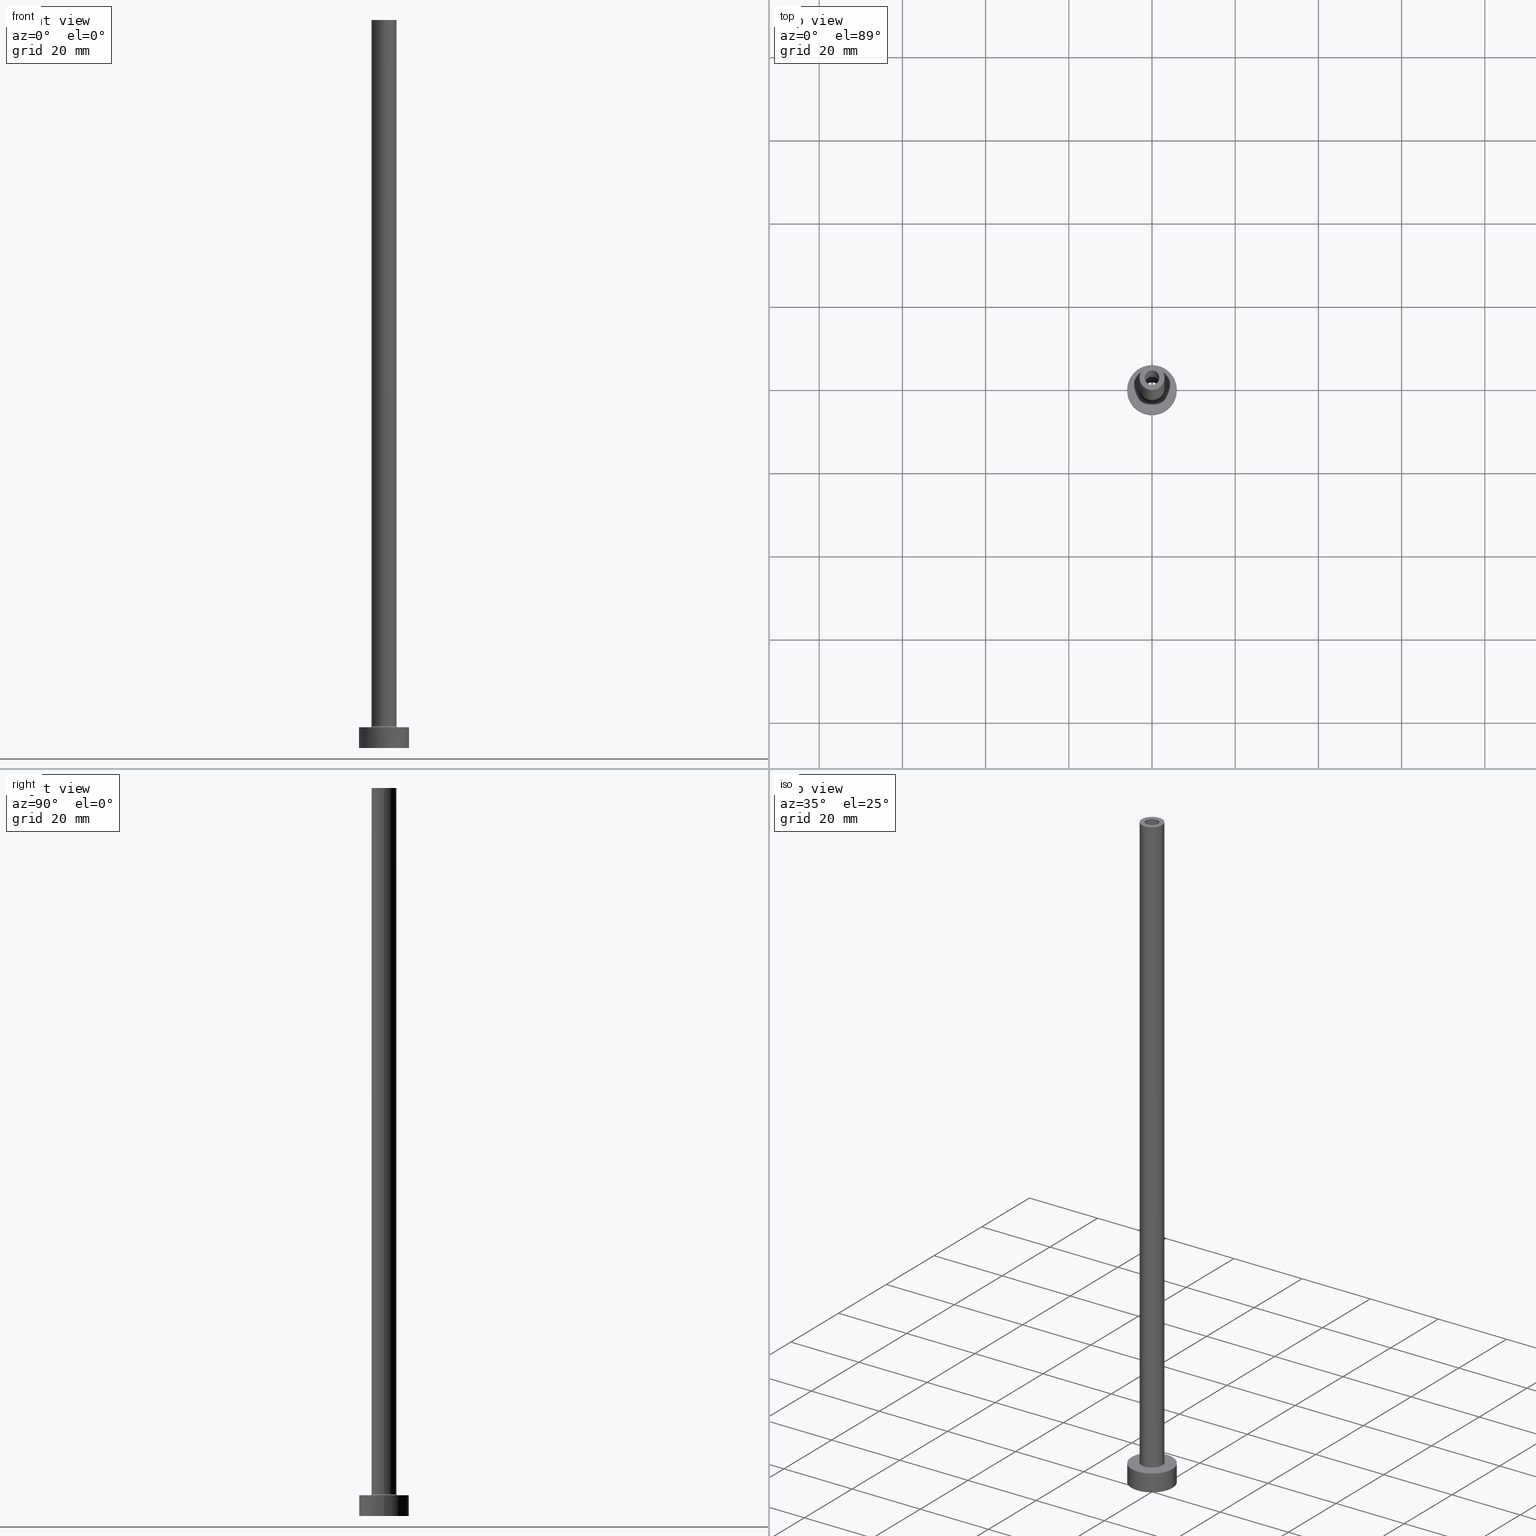
[diagram: canonical four-view strip — front | top / right | iso, engineering-drawing reading convention]
A machine part, canonical four-view strip (front | top / right | iso — engineering-drawing reading convention). The complete STEP part file that produces these views, byte-faithful:
ISO-10303-21;
HEADER;
FILE_DESCRIPTION (( 'STEP AP203' ),
    '1' );
FILE_NAME ('4380.STEP',
    '2023-02-13T12:00:36',
    ( '' ),
    ( '' ),
    'SwSTEP 2.0',
    'SolidWorks 2019',
    '' );
FILE_SCHEMA (( 'CONFIG_CONTROL_DESIGN' ));
ENDSEC;

DATA;
#1 = PERSON_AND_ORGANIZATION ( #414, #332 ) ;
#2 = CARTESIAN_POINT ( 'NONE',  ( 0.000000000000000000, 0.000000000000000000, 130.0000000000000000 ) ) ;
#3 = ORIENTED_EDGE ( 'NONE', *, *, #30, .F. ) ;
#4 = SECURITY_CLASSIFICATION_LEVEL ( 'unclassified' ) ;
#5 = DIRECTION ( 'NONE',  ( 1.000000000000000000, 0.000000000000000000, 0.000000000000000000 ) ) ;
#6 = EDGE_LOOP ( 'NONE', ( #363, #161, #320, #313 ) ) ;
#7 = CARTESIAN_POINT ( 'NONE',  ( 1.750000000000000000, 2.143131898507868297E-16, 175.0000000000000284 ) ) ;
#8 = ORIENTED_EDGE ( 'NONE', *, *, #376, .T. ) ;
#9 = CARTESIAN_POINT ( 'NONE',  ( 0.000000000000000000, 0.000000000000000000, 0.000000000000000000 ) ) ;
#10 = DIRECTION ( 'NONE',  ( -0.000000000000000000, -0.000000000000000000, -1.000000000000000000 ) ) ;
#11 = ORIENTED_EDGE ( 'NONE', *, *, #263, .F. ) ;
#12 = TOROIDAL_SURFACE ( 'NONE', #22, 3.300000000000000266, 0.2999999999999999889 ) ;
#13 = CARTESIAN_POINT ( 'NONE',  ( -3.300000000000000266, 4.041334437186266003E-16, 4.999999999999999112 ) ) ;
#14 = CARTESIAN_POINT ( 'NONE',  ( 0.000000000000000000, 0.000000000000000000, 5.299999999999998934 ) ) ;
#15 = VECTOR ( 'NONE', #364, 1000.000000000000000 ) ;
#16 = EDGE_LOOP ( 'NONE', ( #342, #378, #158, #439 ) ) ;
#17 = FACE_OUTER_BOUND ( 'NONE', #6, .T. ) ;
#18 = AXIS2_PLACEMENT_3D ( 'NONE', #227, #196, #173 ) ;
#19 = EDGE_LOOP ( 'NONE', ( #360, #426 ) ) ;
#20 = DIRECTION ( 'NONE',  ( 0.000000000000000000, 0.000000000000000000, 1.000000000000000000 ) ) ;
#21 = CARTESIAN_POINT ( 'NONE',  ( -1.899999999999999911, 0.000000000000000000, 0.000000000000000000 ) ) ;
#22 = AXIS2_PLACEMENT_3D ( 'NONE', #418, #86, #122 ) ;
#23 = PLANE ( 'NONE',  #91 ) ;
#24 = FACE_OUTER_BOUND ( 'NONE', #150, .T. ) ;
#25 = CARTESIAN_POINT ( 'NONE',  ( 6.000000000000000888, 7.347880794884120722E-16, 5.000000000000000000 ) ) ;
#26 = CYLINDRICAL_SURFACE ( 'NONE', #321, 6.000000000000000888 ) ;
#27 = CYLINDRICAL_SURFACE ( 'NONE', #448, 1.750000000000000000 ) ;
#28 = LINE ( 'NONE', #308, #324 ) ;
#29 = CIRCLE ( 'NONE', #286, 6.000000000000000888 ) ;
#30 = EDGE_CURVE ( 'NONE', #194, #176, #225, .T. ) ;
#31 = AXIS2_PLACEMENT_3D ( 'NONE', #175, #235, #416 ) ;
#32 = EDGE_CURVE ( 'NONE', #232, #67, #243, .T. ) ;
#33 = FACE_OUTER_BOUND ( 'NONE', #374, .T. ) ;
#34 = ORIENTED_EDGE ( 'NONE', *, *, #263, .T. ) ;
#35 = PERSON_AND_ORGANIZATION_ROLE ( 'creator' ) ;
#36 = CARTESIAN_POINT ( 'NONE',  ( 0.000000000000000000, 0.000000000000000000, 175.0000000000000284 ) ) ;
#37 = VERTEX_POINT ( 'NONE', #57 ) ;
#38 = ORIENTED_EDGE ( 'NONE', *, *, #456, .F. ) ;
#39 = CIRCLE ( 'NONE', #249, 6.000000000000000888 ) ;
#40 = PRODUCT_DEFINITION ( 'NEZN�M�', '', #299, #151 ) ;
#41 = CIRCLE ( 'NONE', #199, 6.000000000000000888 ) ;
#42 = CIRCLE ( 'NONE', #229, 1.750000000000000000 ) ;
#43 = DIRECTION ( 'NONE',  ( 1.000000000000000000, 0.000000000000000000, 0.000000000000000000 ) ) ;
#44 = PRODUCT ( '4380', '4380', '', ( #461 ) ) ;
#45 = AXIS2_PLACEMENT_3D ( 'NONE', #449, #64, #95 ) ;
#46 = PERSON_AND_ORGANIZATION_ROLE ( 'creator' ) ;
#47 = EDGE_CURVE ( 'NONE', #178, #256, #50, .T. ) ;
#48 = LOCAL_TIME ( 13, 0, 36.00000000000000000, #211 ) ;
#49 = CIRCLE ( 'NONE', #326, 3.000000000000000444 ) ;
#50 = CIRCLE ( 'NONE', #45, 0.2999999999999999334 ) ;
#51 = DIRECTION ( 'NONE',  ( 1.000000000000000000, 0.000000000000000000, 0.000000000000000000 ) ) ;
#52 = EDGE_CURVE ( 'NONE', #369, #232, #134, .T. ) ;
#53 = EDGE_CURVE ( 'NONE', #403, #283, #56, .T. ) ;
#54 = CIRCLE ( 'NONE', #307, 3.300000000000000266 ) ;
#55 = ORIENTED_EDGE ( 'NONE', *, *, #365, .T. ) ;
#56 = CIRCLE ( 'NONE', #18, 1.899999999999999911 ) ;
#57 = CARTESIAN_POINT ( 'NONE',  ( -1.750000000000000000, 0.000000000000000000, 175.0000000000000284 ) ) ;
#58 = EDGE_CURVE ( 'NONE', #256, #186, #156, .T. ) ;
#59 = EDGE_LOOP ( 'NONE', ( #293, #84, #8, #169 ) ) ;
#60 = LINE ( 'NONE', #226, #268 ) ;
#61 = DIRECTION ( 'NONE',  ( 1.000000000000000000, 0.000000000000000000, 0.000000000000000000 ) ) ;
#62 = AXIS2_PLACEMENT_3D ( 'NONE', #372, #339, #269 ) ;
#63 = PLANE ( 'NONE',  #367 ) ;
#64 = DIRECTION ( 'NONE',  ( 1.224646799147353207E-16, 1.000000000000000000, -0.000000000000000000 ) ) ;
#65 = ORIENTED_EDGE ( 'NONE', *, *, #264, .F. ) ;
#66 = ADVANCED_FACE ( 'NONE', ( #204, #337 ), #23, .F. ) ;
#67 = VERTEX_POINT ( 'NONE', #344 ) ;
#68 = CIRCLE ( 'NONE', #92, 1.750000000000000000 ) ;
#69 = PERSON_AND_ORGANIZATION ( #414, #332 ) ;
#70 = FACE_BOUND ( 'NONE', #357, .T. ) ;
#71 = DIRECTION ( 'NONE',  ( 0.000000000000000000, 0.000000000000000000, 1.000000000000000000 ) ) ;
#72 = VERTEX_POINT ( 'NONE', #101 ) ;
#73 = COORDINATED_UNIVERSAL_TIME_OFFSET ( 1, 0, .AHEAD. ) ;
#74 = EDGE_LOOP ( 'NONE', ( #424, #297, #434, #447 ) ) ;
#75 = PERSON_AND_ORGANIZATION_ROLE ( 'classification_officer' ) ;
#76 =( NAMED_UNIT ( * ) SI_UNIT ( $, .STERADIAN. ) SOLID_ANGLE_UNIT ( ) );
#77 = ORIENTED_EDGE ( 'NONE', *, *, #237, .F. ) ;
#78 =( GEOMETRIC_REPRESENTATION_CONTEXT ( 3 ) GLOBAL_UNCERTAINTY_ASSIGNED_CONTEXT ( ( #352 ) ) GLOBAL_UNIT_ASSIGNED_CONTEXT ( ( #79, #282, #76 ) ) REPRESENTATION_CONTEXT ( 'NONE', 'WORKASPACE' ) );
#79 =( LENGTH_UNIT ( ) NAMED_UNIT ( * ) SI_UNIT ( .MILLI., .METRE. ) );
#80 = VECTOR ( 'NONE', #198, 1000.000000000000000 ) ;
#81 = CARTESIAN_POINT ( 'NONE',  ( 0.000000000000000000, 0.000000000000000000, 5.299999999999998934 ) ) ;
#82 = PERSON_AND_ORGANIZATION ( #414, #332 ) ;
#83 = CARTESIAN_POINT ( 'NONE',  ( 0.000000000000000000, 0.000000000000000000, 175.0000000000000284 ) ) ;
#84 = ORIENTED_EDGE ( 'NONE', *, *, #164, .F. ) ;
#85 = EDGE_LOOP ( 'NONE', ( #77, #281 ) ) ;
#86 = DIRECTION ( 'NONE',  ( 0.000000000000000000, 0.000000000000000000, 1.000000000000000000 ) ) ;
#87 = AXIS2_PLACEMENT_3D ( 'NONE', #163, #407, #191 ) ;
#88 = CARTESIAN_POINT ( 'NONE',  ( 0.000000000000000000, 0.000000000000000000, 5.000000000000000000 ) ) ;
#89 = DIRECTION ( 'NONE',  ( 0.000000000000000000, 0.000000000000000000, 1.000000000000000000 ) ) ;
#90 = CC_DESIGN_APPROVAL ( #94, ( #40 ) ) ;
#91 = AXIS2_PLACEMENT_3D ( 'NONE', #168, #417, #96 ) ;
#92 = AXIS2_PLACEMENT_3D ( 'NONE', #83, #193, #295 ) ;
#93 = ORIENTED_EDGE ( 'NONE', *, *, #32, .T. ) ;
#94 = APPROVAL ( #396, 'NEUR�EN�' ) ;
#95 = DIRECTION ( 'NONE',  ( -1.000000000000000000, 1.224646799147353207E-16, 0.000000000000000000 ) ) ;
#96 = DIRECTION ( 'NONE',  ( 1.000000000000000000, 0.000000000000000000, -0.000000000000000000 ) ) ;
#97 = EDGE_LOOP ( 'NONE', ( #190, #380, #93, #110 ) ) ;
#98 = DIRECTION ( 'NONE',  ( -1.000000000000000000, 0.000000000000000000, 0.000000000000000000 ) ) ;
#99 = CIRCLE ( 'NONE', #384, 0.2999999999999999334 ) ;
#100 = CARTESIAN_POINT ( 'NONE',  ( 1.899999999999999911, 2.326828918379971365E-16, 130.0000000000000000 ) ) ;
#101 = CARTESIAN_POINT ( 'NONE',  ( 3.000000000000000444, 3.673940397442060361E-16, 175.0000000000000284 ) ) ;
#102 = CARTESIAN_POINT ( 'NONE',  ( 3.300000000000000266, 0.000000000000000000, 4.999999999999999112 ) ) ;
#103 = APPROVAL_STATUS ( 'not_yet_approved' ) ;
#104 = CARTESIAN_POINT ( 'NONE',  ( 3.000000000000000444, 3.673940397442060361E-16, 175.0000000000000284 ) ) ;
#105 = APPROVAL_PERSON_ORGANIZATION ( #419, #241, #314 ) ;
#106 = ORIENTED_EDGE ( 'NONE', *, *, #280, .F. ) ;
#107 = DATE_TIME_ROLE ( 'classification_date' ) ;
#108 = DIRECTION ( 'NONE',  ( 1.000000000000000000, 0.000000000000000000, -0.000000000000000000 ) ) ;
#109 = DIRECTION ( 'NONE',  ( 0.000000000000000000, 0.000000000000000000, 1.000000000000000000 ) ) ;
#110 = ORIENTED_EDGE ( 'NONE', *, *, #216, .F. ) ;
#111 = PERSON_AND_ORGANIZATION ( #414, #332 ) ;
#112 = ORIENTED_EDGE ( 'NONE', *, *, #359, .T. ) ;
#113 = PERSON_AND_ORGANIZATION_ROLE ( 'design_supplier' ) ;
#114 = APPROVAL_ROLE ( '' ) ;
#115 = ORIENTED_EDGE ( 'NONE', *, *, #221, .T. ) ;
#116 = CIRCLE ( 'NONE', #438, 3.000000000000000444 ) ;
#117 = CARTESIAN_POINT ( 'NONE',  ( -6.000000000000000888, 0.000000000000000000, 5.000000000000000000 ) ) ;
#118 = DIRECTION ( 'NONE',  ( 0.000000000000000000, 0.000000000000000000, 1.000000000000000000 ) ) ;
#119 = VERTEX_POINT ( 'NONE', #234 ) ;
#120 = EDGE_CURVE ( 'NONE', #389, #209, #345, .T. ) ;
#121 = DIRECTION ( 'NONE',  ( 0.000000000000000000, 0.000000000000000000, 1.000000000000000000 ) ) ;
#122 = DIRECTION ( 'NONE',  ( 1.000000000000000000, 0.000000000000000000, 0.000000000000000000 ) ) ;
#123 = DIRECTION ( 'NONE',  ( 0.000000000000000000, 0.000000000000000000, 1.000000000000000000 ) ) ;
#124 = ADVANCED_FACE ( 'NONE', ( #302 ), #404, .T. ) ;
#125 = EDGE_LOOP ( 'NONE', ( #3, #290, #230, #432 ) ) ;
#126 = DIRECTION ( 'NONE',  ( -1.000000000000000000, 0.000000000000000000, 0.000000000000000000 ) ) ;
#127 = CARTESIAN_POINT ( 'NONE',  ( -6.000000000000000888, 0.000000000000000000, 5.000000000000000000 ) ) ;
#128 = CIRCLE ( 'NONE', #446, 3.000000000000000444 ) ;
#129 = DIRECTION ( 'NONE',  ( 0.000000000000000000, 0.000000000000000000, -1.000000000000000000 ) ) ;
#130 = AXIS2_PLACEMENT_3D ( 'NONE', #242, #89, #411 ) ;
#131 = CARTESIAN_POINT ( 'NONE',  ( 1.750000000000000000, 2.143131898507868297E-16, 175.0000000000000284 ) ) ;
#132 = PRODUCT_RELATED_PRODUCT_CATEGORY ( 'detail', '', ( #44 ) ) ;
#133 = FACE_OUTER_BOUND ( 'NONE', #59, .T. ) ;
#134 = LINE ( 'NONE', #25, #162 ) ;
#135 = DIRECTION ( 'NONE',  ( 1.000000000000000000, 0.000000000000000000, 0.000000000000000000 ) ) ;
#136 = ADVANCED_FACE ( 'NONE', ( #341 ), #26, .T. ) ;
#137 = CARTESIAN_POINT ( 'NONE',  ( 0.000000000000000000, 0.000000000000000000, 5.000000000000000000 ) ) ;
#138 = APPROVAL_PERSON_ORGANIZATION ( #428, #94, #114 ) ;
#139 = DIRECTION ( 'NONE',  ( -0.000000000000000000, -0.000000000000000000, -1.000000000000000000 ) ) ;
#140 = CIRCLE ( 'NONE', #260, 1.899999999999999911 ) ;
#141 = CARTESIAN_POINT ( 'NONE',  ( 0.000000000000000000, 0.000000000000000000, 130.0000000000000000 ) ) ;
#142 = DATE_TIME_ROLE ( 'creation_date' ) ;
#143 = LINE ( 'NONE', #104, #338 ) ;
#144 = DIRECTION ( 'NONE',  ( 0.000000000000000000, 0.000000000000000000, 1.000000000000000000 ) ) ;
#145 = CALENDAR_DATE ( 2023, 13, 2 ) ;
#146 = LOCAL_TIME ( 13, 0, 36.00000000000000000, #73 ) ;
#147 = CALENDAR_DATE ( 2023, 13, 2 ) ;
#148 = APPROVAL_ROLE ( '' ) ;
#149 = LINE ( 'NONE', #251, #353 ) ;
#150 = EDGE_LOOP ( 'NONE', ( #402, #65, #115, #347 ) ) ;
#151 = DESIGN_CONTEXT ( 'detailed design', #231, 'design' ) ;
#152 = EDGE_CURVE ( 'NONE', #37, #410, #28, .T. ) ;
#153 = AXIS2_PLACEMENT_3D ( 'NONE', #137, #305, #453 ) ;
#154 = APPLICATION_PROTOCOL_DEFINITION ( 'international standard', 'config_control_design', 1994, #231 ) ;
#155 = EDGE_LOOP ( 'NONE', ( #106, #185, #11, #333 ) ) ;
#156 = CIRCLE ( 'NONE', #271, 3.300000000000000266 ) ;
#157 = CARTESIAN_POINT ( 'NONE',  ( 6.000000000000000888, 7.347880794884120722E-16, 5.000000000000000000 ) ) ;
#158 = ORIENTED_EDGE ( 'NONE', *, *, #164, .T. ) ;
#159 = ADVANCED_FACE ( 'NONE', ( #177 ), #12, .F. ) ;
#160 = VERTEX_POINT ( 'NONE', #117 ) ;
#161 = ORIENTED_EDGE ( 'NONE', *, *, #456, .T. ) ;
#162 = VECTOR ( 'NONE', #265, 1000.000000000000000 ) ;
#163 = CARTESIAN_POINT ( 'NONE',  ( 0.000000000000000000, 0.000000000000000000, 135.3740115370177932 ) ) ;
#164 = EDGE_CURVE ( 'NONE', #119, #178, #215, .T. ) ;
#165 = ORIENTED_EDGE ( 'NONE', *, *, #188, .T. ) ;
#166 = FACE_OUTER_BOUND ( 'NONE', #97, .T. ) ;
#167 = CIRCLE ( 'NONE', #322, 1.750000000000000000 ) ;
#168 = CARTESIAN_POINT ( 'NONE',  ( 0.000000000000000000, 0.000000000000000000, 0.000000000000000000 ) ) ;
#169 = ORIENTED_EDGE ( 'NONE', *, *, #58, .F. ) ;
#170 = CC_DESIGN_PERSON_AND_ORGANIZATION_ASSIGNMENT ( #82, #316, ( #44 ) ) ;
#171 = CARTESIAN_POINT ( 'NONE',  ( 0.000000000000000000, 0.000000000000000000, 0.000000000000000000 ) ) ;
#172 = CARTESIAN_POINT ( 'NONE',  ( 0.000000000000000000, 0.000000000000000000, 5.000000000000000000 ) ) ;
#173 = DIRECTION ( 'NONE',  ( 1.000000000000000000, 0.000000000000000000, 0.000000000000000000 ) ) ;
#174 = FACE_OUTER_BOUND ( 'NONE', #317, .T. ) ;
#175 = CARTESIAN_POINT ( 'NONE',  ( 0.000000000000000000, 0.000000000000000000, 175.0000000000000284 ) ) ;
#176 = VERTEX_POINT ( 'NONE', #309 ) ;
#177 = FACE_OUTER_BOUND ( 'NONE', #155, .T. ) ;
#178 = VERTEX_POINT ( 'NONE', #421 ) ;
#179 = DIRECTION ( 'NONE',  ( 1.000000000000000000, 0.000000000000000000, 0.000000000000000000 ) ) ;
#180 = ORIENTED_EDGE ( 'NONE', *, *, #30, .T. ) ;
#181 = DATE_AND_TIME ( #145, #146 ) ;
#182 = FACE_OUTER_BOUND ( 'NONE', #220, .T. ) ;
#183 = AXIS2_PLACEMENT_3D ( 'NONE', #262, #409, #135 ) ;
#184 = ORIENTED_EDGE ( 'NONE', *, *, #451, .F. ) ;
#185 = ORIENTED_EDGE ( 'NONE', *, *, #47, .T. ) ;
#186 = VERTEX_POINT ( 'NONE', #102 ) ;
#187 = AXIS2_PLACEMENT_3D ( 'NONE', #412, #139, #98 ) ;
#188 = EDGE_CURVE ( 'NONE', #283, #209, #397, .T. ) ;
#189 = CARTESIAN_POINT ( 'NONE',  ( 0.000000000000000000, 0.000000000000000000, 5.000000000000000000 ) ) ;
#190 = ORIENTED_EDGE ( 'NONE', *, *, #365, .F. ) ;
#191 = DIRECTION ( 'NONE',  ( -1.000000000000000000, 0.000000000000000000, 0.000000000000000000 ) ) ;
#192 = CYLINDRICAL_SURFACE ( 'NONE', #346, 1.899999999999999911 ) ;
#193 = DIRECTION ( 'NONE',  ( 0.000000000000000000, 0.000000000000000000, 1.000000000000000000 ) ) ;
#194 = VERTEX_POINT ( 'NONE', #7 ) ;
#195 = ADVANCED_FACE ( 'NONE', ( #33 ), #258, .F. ) ;
#196 = DIRECTION ( 'NONE',  ( 0.000000000000000000, 0.000000000000000000, 1.000000000000000000 ) ) ;
#197 = CARTESIAN_POINT ( 'NONE',  ( 0.000000000000000000, 0.000000000000000000, 135.3740115370177932 ) ) ;
#198 = DIRECTION ( 'NONE',  ( 0.000000000000000000, 0.000000000000000000, -1.000000000000000000 ) ) ;
#199 = AXIS2_PLACEMENT_3D ( 'NONE', #172, #144, #274 ) ;
#200 = TOROIDAL_SURFACE ( 'NONE', #62, 3.300000000000000266, 0.2999999999999999889 ) ;
#201 = CC_DESIGN_PERSON_AND_ORGANIZATION_ASSIGNMENT ( #358, #46, ( #40 ) ) ;
#202 = CARTESIAN_POINT ( 'NONE',  ( 3.300000000000000266, 0.000000000000000000, 5.299999999999998934 ) ) ;
#203 = DIRECTION ( 'NONE',  ( 0.000000000000000000, 0.000000000000000000, -1.000000000000000000 ) ) ;
#204 = FACE_BOUND ( 'NONE', #85, .T. ) ;
#205 = FACE_BOUND ( 'NONE', #325, .T. ) ;
#206 = DIRECTION ( 'NONE',  ( -1.000000000000000000, 0.000000000000000000, 0.000000000000000000 ) ) ;
#207 = DIRECTION ( 'NONE',  ( -1.000000000000000000, 0.000000000000000000, 0.000000000000000000 ) ) ;
#208 = CIRCLE ( 'NONE', #130, 1.750000000000000000 ) ;
#209 = VERTEX_POINT ( 'NONE', #21 ) ;
#210 = FACE_OUTER_BOUND ( 'NONE', #270, .T. ) ;
#211 = COORDINATED_UNIVERSAL_TIME_OFFSET ( 1, 0, .AHEAD. ) ;
#212 = APPROVAL ( #103, 'NEUR�EN�' ) ;
#213 = EDGE_LOOP ( 'NONE', ( #285, #228 ) ) ;
#214 = CARTESIAN_POINT ( 'NONE',  ( -3.000000000000000444, 0.000000000000000000, 175.0000000000000284 ) ) ;
#215 = CIRCLE ( 'NONE', #222, 3.000000000000000444 ) ;
#216 = EDGE_CURVE ( 'NONE', #160, #67, #296, .T. ) ;
#217 = DIRECTION ( 'NONE',  ( 1.000000000000000000, 0.000000000000000000, 0.000000000000000000 ) ) ;
#218 = DATE_AND_TIME ( #288, #223 ) ;
#219 = DIRECTION ( 'NONE',  ( 0.000000000000000000, 0.000000000000000000, -1.000000000000000000 ) ) ;
#220 = EDGE_LOOP ( 'NONE', ( #112, #180, #184, #278 ) ) ;
#221 = EDGE_CURVE ( 'NONE', #444, #178, #60, .T. ) ;
#222 = AXIS2_PLACEMENT_3D ( 'NONE', #81, #457, #5 ) ;
#223 = LOCAL_TIME ( 13, 0, 36.00000000000000000, #248 ) ;
#224 = CIRCLE ( 'NONE', #400, 1.899999999999999911 ) ;
#225 = LINE ( 'NONE', #131, #80 ) ;
#226 = CARTESIAN_POINT ( 'NONE',  ( -3.000000000000000444, 0.000000000000000000, 175.0000000000000284 ) ) ;
#227 = CARTESIAN_POINT ( 'NONE',  ( 0.000000000000000000, 0.000000000000000000, 130.0000000000000000 ) ) ;
#228 = ORIENTED_EDGE ( 'NONE', *, *, #257, .F. ) ;
#229 = AXIS2_PLACEMENT_3D ( 'NONE', #395, #425, #43 ) ;
#230 = ORIENTED_EDGE ( 'NONE', *, *, #152, .T. ) ;
#231 = APPLICATION_CONTEXT ( 'configuration controlled 3d designs of mechanical parts and assemblies' ) ;
#232 = VERTEX_POINT ( 'NONE', #328 ) ;
#233 = CARTESIAN_POINT ( 'NONE',  ( 0.000000000000000000, 0.000000000000000000, 175.0000000000000284 ) ) ;
#234 = CARTESIAN_POINT ( 'NONE',  ( 3.000000000000000444, 3.673940397442060361E-16, 5.299999999999998934 ) ) ;
#235 = DIRECTION ( 'NONE',  ( -0.000000000000000000, -0.000000000000000000, -1.000000000000000000 ) ) ;
#236 = DIRECTION ( 'NONE',  ( 0.000000000000000000, 0.000000000000000000, -1.000000000000000000 ) ) ;
#237 = EDGE_CURVE ( 'NONE', #209, #389, #140, .T. ) ;
#238 = APPROVAL_DATE_TIME ( #181, #212 ) ;
#239 = DIRECTION ( 'NONE',  ( 0.000000000000000000, 0.000000000000000000, 1.000000000000000000 ) ) ;
#240 = LOCAL_TIME ( 13, 0, 36.00000000000000000, #246 ) ;
#241 = APPROVAL ( #348, 'NEUR�EN�' ) ;
#242 = CARTESIAN_POINT ( 'NONE',  ( 0.000000000000000000, 0.000000000000000000, 130.0000000000000000 ) ) ;
#243 = CIRCLE ( 'NONE', #183, 6.000000000000000888 ) ;
#244 = DIRECTION ( 'NONE',  ( 0.000000000000000000, 0.000000000000000000, -1.000000000000000000 ) ) ;
#245 = SHAPE_DEFINITION_REPRESENTATION ( #356, #368 ) ;
#246 = COORDINATED_UNIVERSAL_TIME_OFFSET ( 1, 0, .AHEAD. ) ;
#247 = DIRECTION ( 'NONE',  ( 1.000000000000000000, 0.000000000000000000, -0.000000000000000000 ) ) ;
#248 = COORDINATED_UNIVERSAL_TIME_OFFSET ( 1, 0, .AHEAD. ) ;
#249 = AXIS2_PLACEMENT_3D ( 'NONE', #391, #109, #279 ) ;
#250 = CARTESIAN_POINT ( 'NONE',  ( 0.000000000000000000, 0.000000000000000000, 0.000000000000000000 ) ) ;
#251 = CARTESIAN_POINT ( 'NONE',  ( 1.899999999999999911, 2.326828918379971365E-16, 135.3740115370177932 ) ) ;
#252 = ORIENTED_EDGE ( 'NONE', *, *, #429, .F. ) ;
#253 = CC_DESIGN_SECURITY_CLASSIFICATION ( #298, ( #299 ) ) ;
#254 = DIRECTION ( 'NONE',  ( 1.000000000000000000, 0.000000000000000000, 0.000000000000000000 ) ) ;
#255 = DIRECTION ( 'NONE',  ( 1.000000000000000000, 0.000000000000000000, 0.000000000000000000 ) ) ;
#256 = VERTEX_POINT ( 'NONE', #13 ) ;
#257 = EDGE_CURVE ( 'NONE', #194, #37, #68, .T. ) ;
#258 = CYLINDRICAL_SURFACE ( 'NONE', #87, 1.899999999999999911 ) ;
#259 = AXIS2_PLACEMENT_3D ( 'NONE', #250, #118, #179 ) ;
#260 = AXIS2_PLACEMENT_3D ( 'NONE', #9, #435, #254 ) ;
#261 = DIRECTION ( 'NONE',  ( 1.000000000000000000, 0.000000000000000000, 0.000000000000000000 ) ) ;
#262 = CARTESIAN_POINT ( 'NONE',  ( 0.000000000000000000, 0.000000000000000000, 0.000000000000000000 ) ) ;
#263 = EDGE_CURVE ( 'NONE', #186, #256, #54, .T. ) ;
#264 = EDGE_CURVE ( 'NONE', #444, #72, #116, .T. ) ;
#265 = DIRECTION ( 'NONE',  ( -0.000000000000000000, -0.000000000000000000, -1.000000000000000000 ) ) ;
#266 = DIRECTION ( 'NONE',  ( 1.000000000000000000, 0.000000000000000000, 0.000000000000000000 ) ) ;
#267 = DIRECTION ( 'NONE',  ( -0.000000000000000000, -0.000000000000000000, -1.000000000000000000 ) ) ;
#268 = VECTOR ( 'NONE', #292, 1000.000000000000000 ) ;
#269 = DIRECTION ( 'NONE',  ( 1.000000000000000000, 0.000000000000000000, 0.000000000000000000 ) ) ;
#270 = EDGE_LOOP ( 'NONE', ( #387, #351 ) ) ;
#271 = AXIS2_PLACEMENT_3D ( 'NONE', #377, #334, #266 ) ;
#272 = CARTESIAN_POINT ( 'NONE',  ( 1.899999999999999911, 2.326828918379971365E-16, 0.000000000000000000 ) ) ;
#273 = ADVANCED_FACE ( 'NONE', ( #17 ), #192, .F. ) ;
#274 = DIRECTION ( 'NONE',  ( 1.000000000000000000, 0.000000000000000000, 0.000000000000000000 ) ) ;
#275 = ORIENTED_EDGE ( 'NONE', *, *, #32, .F. ) ;
#276 = DATE_AND_TIME ( #147, #240 ) ;
#277 = AXIS2_PLACEMENT_3D ( 'NONE', #88, #441, #126 ) ;
#278 = ORIENTED_EDGE ( 'NONE', *, *, #152, .F. ) ;
#279 = DIRECTION ( 'NONE',  ( 1.000000000000000000, 0.000000000000000000, 0.000000000000000000 ) ) ;
#280 = EDGE_CURVE ( 'NONE', #178, #119, #49, .T. ) ;
#281 = ORIENTED_EDGE ( 'NONE', *, *, #120, .F. ) ;
#282 =( NAMED_UNIT ( * ) PLANE_ANGLE_UNIT ( ) SI_UNIT ( $, .RADIAN. ) );
#283 = VERTEX_POINT ( 'NONE', #331 ) ;
#284 = PERSON_AND_ORGANIZATION ( #414, #332 ) ;
#285 = ORIENTED_EDGE ( 'NONE', *, *, #359, .F. ) ;
#286 = AXIS2_PLACEMENT_3D ( 'NONE', #361, #390, #217 ) ;
#287 = PLANE ( 'NONE',  #294 ) ;
#288 = CALENDAR_DATE ( 2023, 13, 2 ) ;
#289 = ADVANCED_FACE ( 'NONE', ( #166 ), #401, .T. ) ;
#290 = ORIENTED_EDGE ( 'NONE', *, *, #257, .T. ) ;
#291 = ORIENTED_EDGE ( 'NONE', *, *, #237, .T. ) ;
#292 = DIRECTION ( 'NONE',  ( -0.000000000000000000, -0.000000000000000000, -1.000000000000000000 ) ) ;
#293 = ORIENTED_EDGE ( 'NONE', *, *, #47, .F. ) ;
#294 = AXIS2_PLACEMENT_3D ( 'NONE', #315, #121, #247 ) ;
#295 = DIRECTION ( 'NONE',  ( 1.000000000000000000, 0.000000000000000000, 0.000000000000000000 ) ) ;
#296 = LINE ( 'NONE', #127, #440 ) ;
#297 = ORIENTED_EDGE ( 'NONE', *, *, #406, .F. ) ;
#298 = SECURITY_CLASSIFICATION ( '', '', #4 ) ;
#299 = PRODUCT_DEFINITION_FORMATION_WITH_SPECIFIED_SOURCE ( 'LIBOVOLN�', '', #44, .NOT_KNOWN. ) ;
#300 = CARTESIAN_POINT ( 'NONE',  ( 0.000000000000000000, 0.000000000000000000, 175.0000000000000284 ) ) ;
#301 = CC_DESIGN_PERSON_AND_ORGANIZATION_ASSIGNMENT ( #111, #75, ( #298 ) ) ;
#302 = FACE_OUTER_BOUND ( 'NONE', #16, .T. ) ;
#303 = CARTESIAN_POINT ( 'NONE',  ( 0.000000000000000000, 0.000000000000000000, 5.000000000000000000 ) ) ;
#304 = ADVANCED_FACE ( 'NONE', ( #205, #174 ), #454, .T. ) ;
#305 = DIRECTION ( 'NONE',  ( 0.000000000000000000, 0.000000000000000000, 1.000000000000000000 ) ) ;
#306 = EDGE_CURVE ( 'NONE', #72, #119, #143, .T. ) ;
#307 = AXIS2_PLACEMENT_3D ( 'NONE', #189, #10, #51 ) ;
#308 = CARTESIAN_POINT ( 'NONE',  ( -1.750000000000000000, 0.000000000000000000, 175.0000000000000284 ) ) ;
#309 = CARTESIAN_POINT ( 'NONE',  ( 1.750000000000000000, 2.143131898507868297E-16, 130.0000000000000000 ) ) ;
#310 = ORIENTED_EDGE ( 'NONE', *, *, #370, .T. ) ;
#311 = FACE_BOUND ( 'NONE', #213, .T. ) ;
#312 = DIRECTION ( 'NONE',  ( -1.000000000000000000, 0.000000000000000000, 0.000000000000000000 ) ) ;
#313 = ORIENTED_EDGE ( 'NONE', *, *, #188, .F. ) ;
#314 = APPROVAL_ROLE ( '' ) ;
#315 = CARTESIAN_POINT ( 'NONE',  ( 0.000000000000000000, 0.000000000000000000, 130.0000000000000000 ) ) ;
#316 = PERSON_AND_ORGANIZATION_ROLE ( 'design_owner' ) ;
#317 = EDGE_LOOP ( 'NONE', ( #392, #55 ) ) ;
#318 = DATE_AND_TIME ( #386, #362 ) ;
#319 = ORIENTED_EDGE ( 'NONE', *, *, #451, .T. ) ;
#320 = ORIENTED_EDGE ( 'NONE', *, *, #120, .T. ) ;
#321 = AXIS2_PLACEMENT_3D ( 'NONE', #303, #452, #207 ) ;
#322 = AXIS2_PLACEMENT_3D ( 'NONE', #2, #431, #355 ) ;
#323 = ADVANCED_FACE ( 'NONE', ( #311, #450 ), #63, .T. ) ;
#324 = VECTOR ( 'NONE', #236, 1000.000000000000000 ) ;
#325 = EDGE_LOOP ( 'NONE', ( #34, #430 ) ) ;
#326 = AXIS2_PLACEMENT_3D ( 'NONE', #14, #20, #255 ) ;
#327 = CARTESIAN_POINT ( 'NONE',  ( -1.899999999999999911, 0.000000000000000000, 135.3740115370177932 ) ) ;
#328 = CARTESIAN_POINT ( 'NONE',  ( 6.000000000000000888, 7.347880794884120722E-16, 0.000000000000000000 ) ) ;
#329 = EDGE_CURVE ( 'NONE', #283, #403, #224, .T. ) ;
#330 = CC_DESIGN_DATE_AND_TIME_ASSIGNMENT ( #335, #142, ( #40 ) ) ;
#331 = CARTESIAN_POINT ( 'NONE',  ( -1.899999999999999911, 0.000000000000000000, 130.0000000000000000 ) ) ;
#332 = ORGANIZATION ( 'NEUR�EN�', 'NEUR�EN�', '' ) ;
#333 = ORIENTED_EDGE ( 'NONE', *, *, #376, .F. ) ;
#334 = DIRECTION ( 'NONE',  ( -0.000000000000000000, -0.000000000000000000, -1.000000000000000000 ) ) ;
#335 = DATE_AND_TIME ( #436, #48 ) ;
#336 = DIRECTION ( 'NONE',  ( 1.000000000000000000, 0.000000000000000000, 0.000000000000000000 ) ) ;
#337 = FACE_OUTER_BOUND ( 'NONE', #394, .T. ) ;
#338 = VECTOR ( 'NONE', #267, 1000.000000000000000 ) ;
#339 = DIRECTION ( 'NONE',  ( 0.000000000000000000, 0.000000000000000000, 1.000000000000000000 ) ) ;
#340 = CYLINDRICAL_SURFACE ( 'NONE', #31, 3.000000000000000444 ) ;
#341 = FACE_OUTER_BOUND ( 'NONE', #74, .T. ) ;
#342 = ORIENTED_EDGE ( 'NONE', *, *, #427, .F. ) ;
#343 = ADVANCED_FACE ( 'NONE', ( #70, #210 ), #287, .F. ) ;
#344 = CARTESIAN_POINT ( 'NONE',  ( -6.000000000000000888, 0.000000000000000000, 0.000000000000000000 ) ) ;
#345 = CIRCLE ( 'NONE', #399, 1.899999999999999911 ) ;
#346 = AXIS2_PLACEMENT_3D ( 'NONE', #197, #129, #442 ) ;
#347 = ORIENTED_EDGE ( 'NONE', *, *, #280, .T. ) ;
#348 = APPROVAL_STATUS ( 'not_yet_approved' ) ;
#349 = CYLINDRICAL_SURFACE ( 'NONE', #413, 1.750000000000000000 ) ;
#350 = COORDINATED_UNIVERSAL_TIME_OFFSET ( 1, 0, .AHEAD. ) ;
#351 = ORIENTED_EDGE ( 'NONE', *, *, #53, .F. ) ;
#352 = UNCERTAINTY_MEASURE_WITH_UNIT (LENGTH_MEASURE( 1.000000000000000082E-05 ), #79, 'distance_accuracy_value', 'NONE');
#353 = VECTOR ( 'NONE', #244, 1000.000000000000000 ) ;
#354 = APPROVAL_PERSON_ORGANIZATION ( #69, #212, #148 ) ;
#355 = DIRECTION ( 'NONE',  ( 1.000000000000000000, 0.000000000000000000, 0.000000000000000000 ) ) ;
#356 = PRODUCT_DEFINITION_SHAPE ( 'NONE', 'NONE',  #40 ) ;
#357 = EDGE_LOOP ( 'NONE', ( #319, #310 ) ) ;
#358 = PERSON_AND_ORGANIZATION ( #414, #332 ) ;
#359 = EDGE_CURVE ( 'NONE', #37, #194, #42, .T. ) ;
#360 = ORIENTED_EDGE ( 'NONE', *, *, #264, .T. ) ;
#361 = CARTESIAN_POINT ( 'NONE',  ( 0.000000000000000000, 0.000000000000000000, 5.000000000000000000 ) ) ;
#362 = LOCAL_TIME ( 13, 0, 36.00000000000000000, #350 ) ;
#363 = ORIENTED_EDGE ( 'NONE', *, *, #329, .T. ) ;
#364 = DIRECTION ( 'NONE',  ( 0.000000000000000000, 0.000000000000000000, -1.000000000000000000 ) ) ;
#365 = EDGE_CURVE ( 'NONE', #369, #160, #29, .T. ) ;
#366 = ORIENTED_EDGE ( 'NONE', *, *, #53, .T. ) ;
#367 = AXIS2_PLACEMENT_3D ( 'NONE', #415, #423, #108 ) ;
#368 = ADVANCED_BREP_SHAPE_REPRESENTATION ( '4380', ( #383, #259 ), #78 ) ;
#369 = VERTEX_POINT ( 'NONE', #157 ) ;
#370 = EDGE_CURVE ( 'NONE', #176, #410, #208, .T. ) ;
#371 = CC_DESIGN_DATE_AND_TIME_ASSIGNMENT ( #276, #107, ( #298 ) ) ;
#372 = CARTESIAN_POINT ( 'NONE',  ( 0.000000000000000000, 0.000000000000000000, 5.299999999999998934 ) ) ;
#373 = DIRECTION ( 'NONE',  ( -0.000000000000000000, -0.000000000000000000, -1.000000000000000000 ) ) ;
#374 = EDGE_LOOP ( 'NONE', ( #38, #366, #165, #291 ) ) ;
#375 = DIRECTION ( 'NONE',  ( 0.000000000000000000, -1.000000000000000000, 0.000000000000000000 ) ) ;
#376 = EDGE_CURVE ( 'NONE', #119, #186, #99, .T. ) ;
#377 = CARTESIAN_POINT ( 'NONE',  ( 0.000000000000000000, 0.000000000000000000, 5.000000000000000000 ) ) ;
#378 = ORIENTED_EDGE ( 'NONE', *, *, #306, .T. ) ;
#379 = DIRECTION ( 'NONE',  ( 0.000000000000000000, 0.000000000000000000, -1.000000000000000000 ) ) ;
#380 = ORIENTED_EDGE ( 'NONE', *, *, #52, .T. ) ;
#381 = ADVANCED_FACE ( 'NONE', ( #133 ), #200, .F. ) ;
#382 = DIRECTION ( 'NONE',  ( 1.000000000000000000, 0.000000000000000000, 0.000000000000000000 ) ) ;
#383 = MANIFOLD_SOLID_BREP ( 'Odebrat vysunut�m4', #393 ) ;
#384 = AXIS2_PLACEMENT_3D ( 'NONE', #202, #375, #203 ) ;
#385 = CARTESIAN_POINT ( 'NONE',  ( 0.000000000000000000, 0.000000000000000000, 175.0000000000000284 ) ) ;
#386 = CALENDAR_DATE ( 2023, 13, 2 ) ;
#387 = ORIENTED_EDGE ( 'NONE', *, *, #329, .F. ) ;
#388 = APPLICATION_PROTOCOL_DEFINITION ( 'international standard', 'config_control_design', 1994, #437 ) ;
#389 = VERTEX_POINT ( 'NONE', #272 ) ;
#390 = DIRECTION ( 'NONE',  ( 0.000000000000000000, 0.000000000000000000, 1.000000000000000000 ) ) ;
#391 = CARTESIAN_POINT ( 'NONE',  ( 0.000000000000000000, 0.000000000000000000, 0.000000000000000000 ) ) ;
#392 = ORIENTED_EDGE ( 'NONE', *, *, #406, .T. ) ;
#393 = CLOSED_SHELL ( 'NONE', ( #443, #273, #159, #124, #289, #136, #304, #66, #398, #323, #381, #195, #343, #405 ) ) ;
#394 = EDGE_LOOP ( 'NONE', ( #252, #275 ) ) ;
#395 = CARTESIAN_POINT ( 'NONE',  ( 0.000000000000000000, 0.000000000000000000, 175.0000000000000284 ) ) ;
#396 = APPROVAL_STATUS ( 'not_yet_approved' ) ;
#397 = LINE ( 'NONE', #327, #15 ) ;
#398 = ADVANCED_FACE ( 'NONE', ( #24 ), #340, .T. ) ;
#399 = AXIS2_PLACEMENT_3D ( 'NONE', #171, #373, #61 ) ;
#400 = AXIS2_PLACEMENT_3D ( 'NONE', #141, #239, #382 ) ;
#401 = CYLINDRICAL_SURFACE ( 'NONE', #277, 6.000000000000000888 ) ;
#402 = ORIENTED_EDGE ( 'NONE', *, *, #306, .F. ) ;
#403 = VERTEX_POINT ( 'NONE', #100 ) ;
#404 = CYLINDRICAL_SURFACE ( 'NONE', #187, 3.000000000000000444 ) ;
#405 = ADVANCED_FACE ( 'NONE', ( #455 ), #27, .F. ) ;
#406 = EDGE_CURVE ( 'NONE', #160, #369, #41, .T. ) ;
#407 = DIRECTION ( 'NONE',  ( 0.000000000000000000, 0.000000000000000000, -1.000000000000000000 ) ) ;
#408 = CC_DESIGN_PERSON_AND_ORGANIZATION_ASSIGNMENT ( #284, #35, ( #299 ) ) ;
#409 = DIRECTION ( 'NONE',  ( 0.000000000000000000, 0.000000000000000000, 1.000000000000000000 ) ) ;
#410 = VERTEX_POINT ( 'NONE', #420 ) ;
#411 = DIRECTION ( 'NONE',  ( 1.000000000000000000, 0.000000000000000000, 0.000000000000000000 ) ) ;
#412 = CARTESIAN_POINT ( 'NONE',  ( 0.000000000000000000, 0.000000000000000000, 175.0000000000000284 ) ) ;
#413 = AXIS2_PLACEMENT_3D ( 'NONE', #36, #219, #312 ) ;
#414 = PERSON ( 'NEUR�EN�', 'NEUR�EN�', 'NEUR�EN�', ('NEUR�EN�'), ('NEUR�EN�'), ('NEUR�EN�') ) ;
#415 = CARTESIAN_POINT ( 'NONE',  ( 0.000000000000000000, 0.000000000000000000, 175.0000000000000284 ) ) ;
#416 = DIRECTION ( 'NONE',  ( -1.000000000000000000, 0.000000000000000000, 0.000000000000000000 ) ) ;
#417 = DIRECTION ( 'NONE',  ( 0.000000000000000000, 0.000000000000000000, 1.000000000000000000 ) ) ;
#418 = CARTESIAN_POINT ( 'NONE',  ( 0.000000000000000000, 0.000000000000000000, 5.299999999999998934 ) ) ;
#419 = PERSON_AND_ORGANIZATION ( #414, #332 ) ;
#420 = CARTESIAN_POINT ( 'NONE',  ( -1.750000000000000000, 0.000000000000000000, 130.0000000000000000 ) ) ;
#421 = CARTESIAN_POINT ( 'NONE',  ( -3.000000000000000444, 0.000000000000000000, 5.299999999999998934 ) ) ;
#422 = CC_DESIGN_APPROVAL ( #241, ( #299 ) ) ;
#423 = DIRECTION ( 'NONE',  ( 0.000000000000000000, 0.000000000000000000, 1.000000000000000000 ) ) ;
#424 = ORIENTED_EDGE ( 'NONE', *, *, #52, .F. ) ;
#425 = DIRECTION ( 'NONE',  ( 0.000000000000000000, 0.000000000000000000, 1.000000000000000000 ) ) ;
#426 = ORIENTED_EDGE ( 'NONE', *, *, #427, .T. ) ;
#427 = EDGE_CURVE ( 'NONE', #72, #444, #128, .T. ) ;
#428 = PERSON_AND_ORGANIZATION ( #414, #332 ) ;
#429 = EDGE_CURVE ( 'NONE', #67, #232, #39, .T. ) ;
#430 = ORIENTED_EDGE ( 'NONE', *, *, #58, .T. ) ;
#431 = DIRECTION ( 'NONE',  ( 0.000000000000000000, 0.000000000000000000, 1.000000000000000000 ) ) ;
#432 = ORIENTED_EDGE ( 'NONE', *, *, #370, .F. ) ;
#433 = APPROVAL_DATE_TIME ( #218, #94 ) ;
#434 = ORIENTED_EDGE ( 'NONE', *, *, #216, .T. ) ;
#435 = DIRECTION ( 'NONE',  ( -0.000000000000000000, -0.000000000000000000, -1.000000000000000000 ) ) ;
#436 = CALENDAR_DATE ( 2023, 13, 2 ) ;
#437 = APPLICATION_CONTEXT ( 'configuration controlled 3d designs of mechanical parts and assemblies' ) ;
#438 = AXIS2_PLACEMENT_3D ( 'NONE', #300, #123, #261 ) ;
#439 = ORIENTED_EDGE ( 'NONE', *, *, #221, .F. ) ;
#440 = VECTOR ( 'NONE', #445, 1000.000000000000000 ) ;
#441 = DIRECTION ( 'NONE',  ( -0.000000000000000000, -0.000000000000000000, -1.000000000000000000 ) ) ;
#442 = DIRECTION ( 'NONE',  ( -1.000000000000000000, 0.000000000000000000, 0.000000000000000000 ) ) ;
#443 = ADVANCED_FACE ( 'NONE', ( #182 ), #349, .F. ) ;
#444 = VERTEX_POINT ( 'NONE', #214 ) ;
#445 = DIRECTION ( 'NONE',  ( -0.000000000000000000, -0.000000000000000000, -1.000000000000000000 ) ) ;
#446 = AXIS2_PLACEMENT_3D ( 'NONE', #385, #71, #336 ) ;
#447 = ORIENTED_EDGE ( 'NONE', *, *, #429, .T. ) ;
#448 = AXIS2_PLACEMENT_3D ( 'NONE', #233, #379, #206 ) ;
#449 = CARTESIAN_POINT ( 'NONE',  ( -3.300000000000000266, 4.041334437186266003E-16, 5.299999999999998934 ) ) ;
#450 = FACE_OUTER_BOUND ( 'NONE', #19, .T. ) ;
#451 = EDGE_CURVE ( 'NONE', #410, #176, #167, .T. ) ;
#452 = DIRECTION ( 'NONE',  ( -0.000000000000000000, -0.000000000000000000, -1.000000000000000000 ) ) ;
#453 = DIRECTION ( 'NONE',  ( 1.000000000000000000, 0.000000000000000000, -0.000000000000000000 ) ) ;
#454 = PLANE ( 'NONE',  #153 ) ;
#455 = FACE_OUTER_BOUND ( 'NONE', #125, .T. ) ;
#456 = EDGE_CURVE ( 'NONE', #403, #389, #149, .T. ) ;
#457 = DIRECTION ( 'NONE',  ( 0.000000000000000000, 0.000000000000000000, 1.000000000000000000 ) ) ;
#458 = CC_DESIGN_PERSON_AND_ORGANIZATION_ASSIGNMENT ( #1, #113, ( #299 ) ) ;
#459 = CC_DESIGN_APPROVAL ( #212, ( #298 ) ) ;
#460 = APPROVAL_DATE_TIME ( #318, #241 ) ;
#461 = MECHANICAL_CONTEXT ( 'NONE', #437, 'mechanical' ) ;
ENDSEC;
END-ISO-10303-21;
